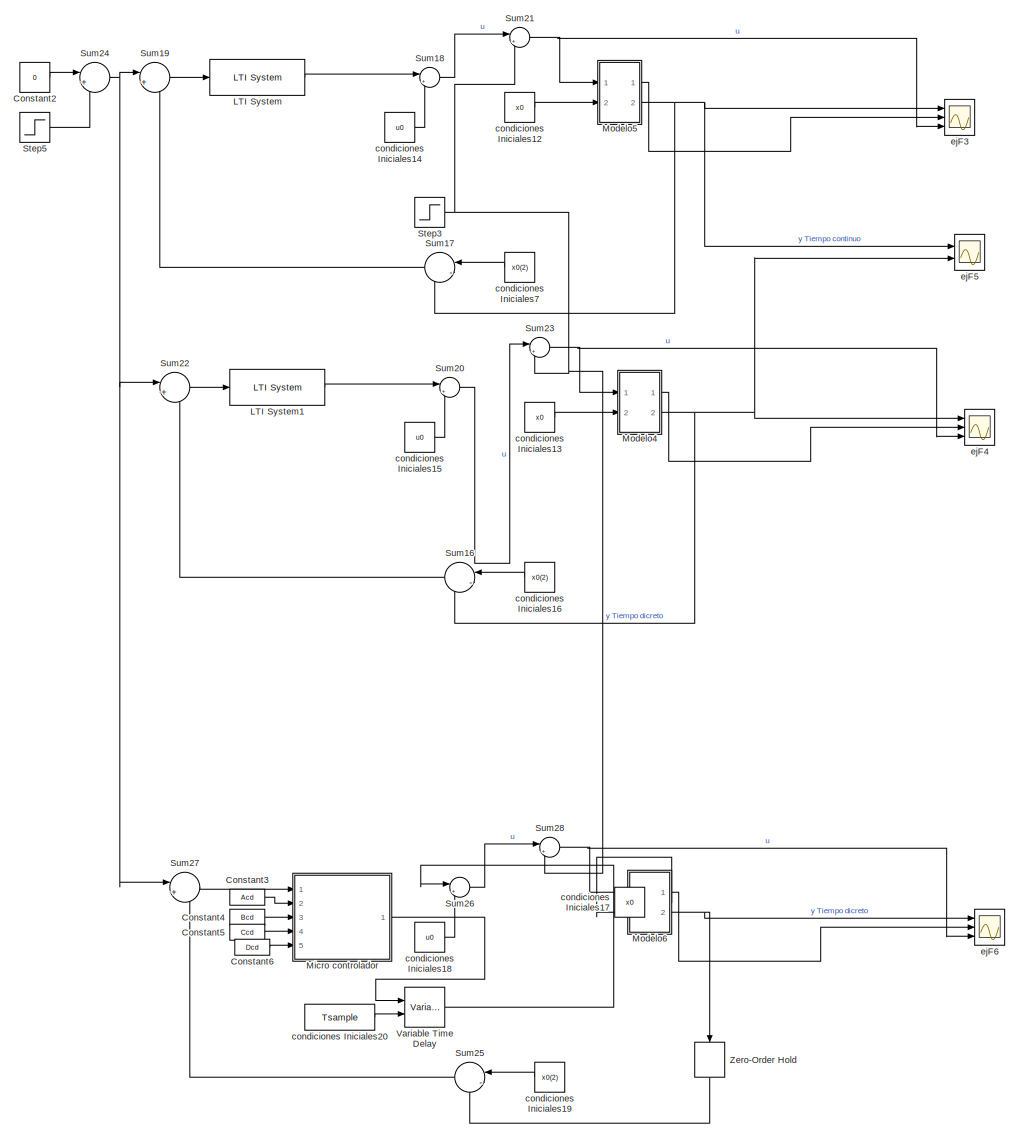
[diagram: root canvas - part 1/3, right side, full height]
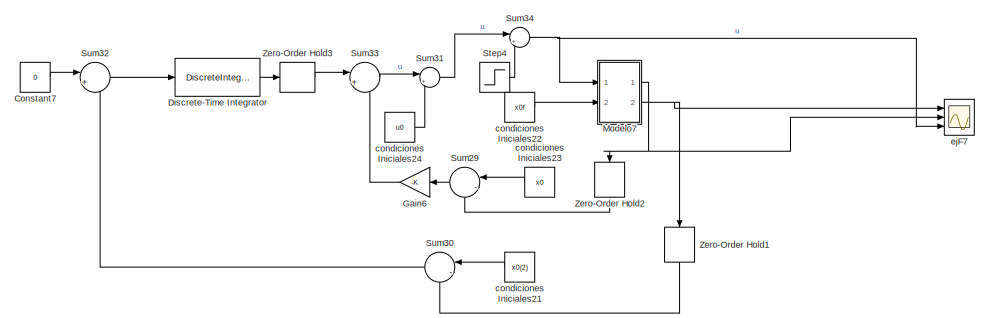
[diagram: root canvas - part 2/3, top left region]
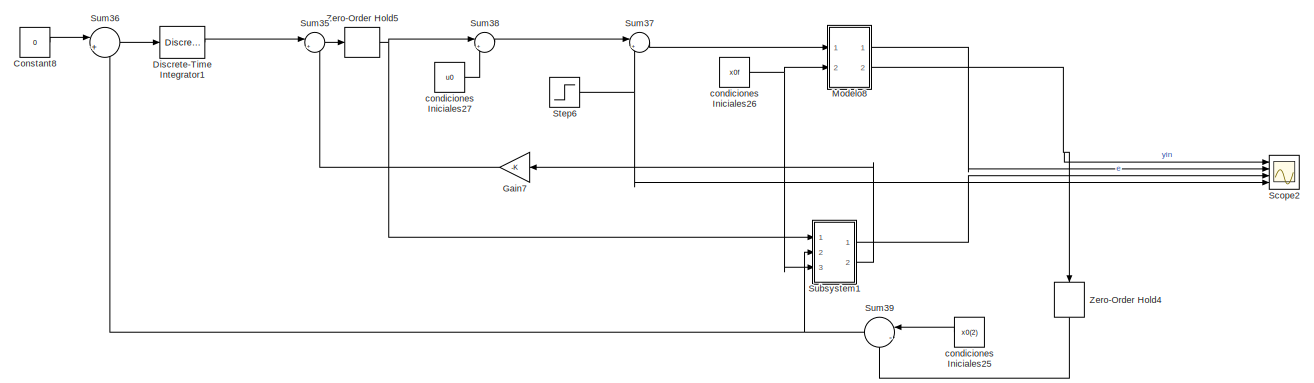
[diagram: root canvas - part 3/3, middle left region]
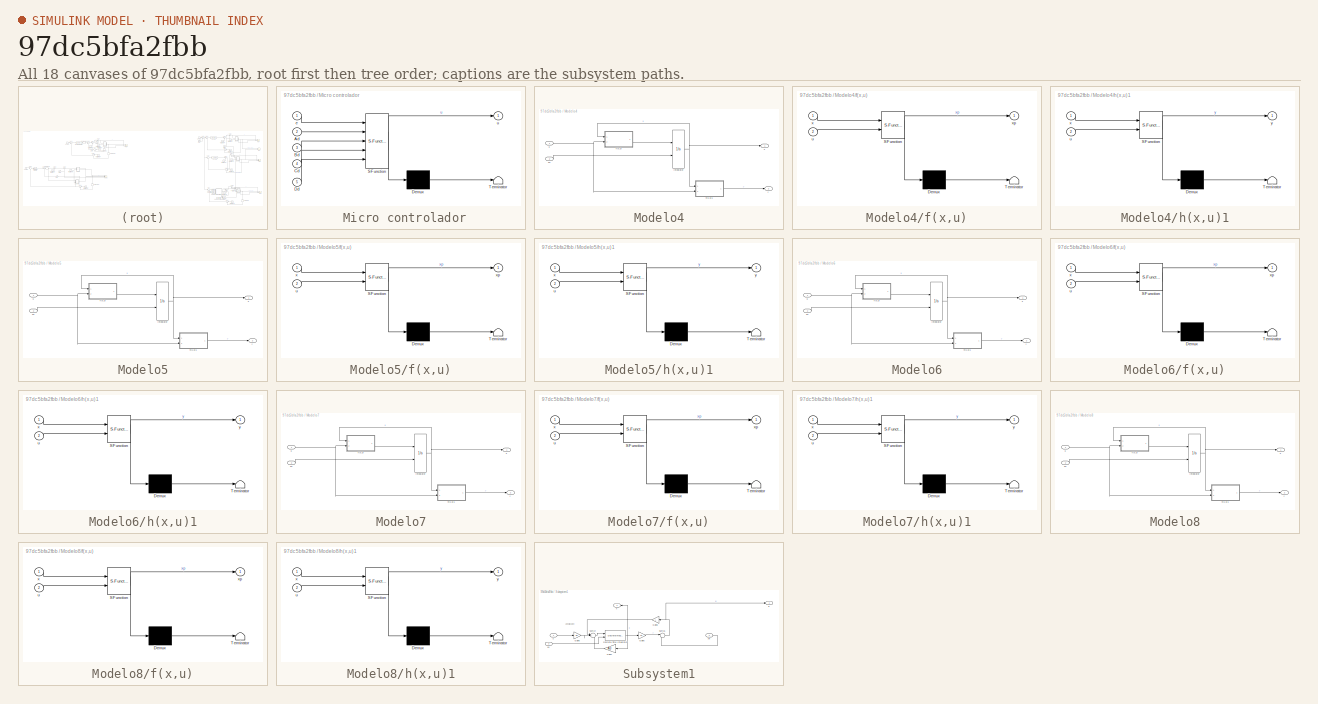
[diagram: thumbnail index - all 18 canvases of the model, root first then tree order]
MODEL slx_97dc5bfa2fbb
KIND model
CONFIG AbsTol = auto
CONFIG EnableMultiTasking = off
CONFIG FixedStep = 10e-6
CONFIG MaxStep = auto
CONFIG MinStep = auto
CONFIG RelTol = 1e-3
CONFIG SampleTimeConstraint = Unconstrained
CONFIG Solver = ode4
CONFIG SolverName = ode4
CONFIG StartTime = 0.0
CONFIG StopTime = 5
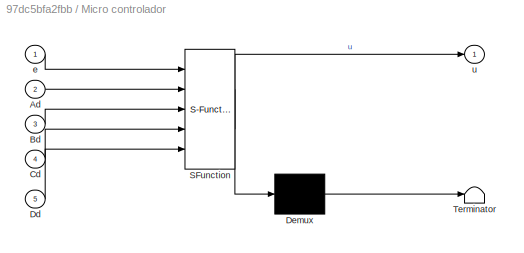
BLOCK [SubSystem]  Micro controlador
  Commented = on
  ErrorFcn = Stateflow.Translate.translate
  PermitHierarchicalResolution = ExplicitOnly
  Ports = [5, 1]
  RequestExecContextInheritance = off
  SFBlockType = MATLAB Function
  SystemSampleTime = Tsample
  TreatAsAtomicUnit = on
BLOCK [Demux]  Micro controlador/ Demux 
  DisplayOption = bar
  Outputs = 1
  Ports = [1, 1]
BLOCK [S-Function]  Micro controlador/ SFunction 
  EnableBusSupport = on
  FunctionName = sf_sfun
  PortCounts = [5 2]
  Ports = [5, 2]
  SFcnIsStateOwnerBlock = off
  SFunctionDeploymentMode = off
  Tag = Stateflow S-Function 13
BLOCK [Terminator]  Micro controlador/ Terminator 
BLOCK [Inport]  Micro controlador/Ad
  IconDisplay = Port number
  Port = 2
BLOCK [Inport]  Micro controlador/Bd
  IconDisplay = Port number
  Port = 3
BLOCK [Inport]  Micro controlador/Cd
  IconDisplay = Port number
  Port = 4
BLOCK [Inport]  Micro controlador/Dd
  IconDisplay = Port number
  Port = 5
BLOCK [Inport]  Micro controlador/e
  IconDisplay = Port number
BLOCK [Outport]  Micro controlador/u
  IconDisplay = Port number
BLOCK [Constant] Constant2
  Commented = on
  Value = 0
BLOCK [Constant] Constant3
  Commented = on
  Value = Acd
BLOCK [Constant] Constant4
  Commented = on
  Value = Bcd
BLOCK [Constant] Constant5
  Commented = on
  Value = Ccd
BLOCK [Constant] Constant6
  Commented = on
  Value = Dcd
BLOCK [Constant] Constant7
  Commented = on
  Value = 0
BLOCK [Constant] Constant8
  Value = 0
BLOCK [DiscreteIntegrator] Discrete-Time Integrator
  Commented = on
  ICPrevOutput = DiscIntNeverNeededParam
  ICPrevScaledInput = DiscIntNeverNeededParam
  InitialConditionSetting = Auto
  IntegratorMethod = Integration: Trapezoidal
  Ports = [1, 1]
  SampleTime = Tsample
  gainval = Ki
BLOCK [DiscreteIntegrator] Discrete-Time Integrator1
  ICPrevOutput = DiscIntNeverNeededParam
  ICPrevScaledInput = DiscIntNeverNeededParam
  InitialConditionSetting = Auto
  IntegratorMethod = Integration: Trapezoidal
  Ports = [1, 1]
  SampleTime = Tsample
  gainval = Ki
BLOCK [Gain] Gain6
  Commented = on
  Gain = -K
  Multiplication = Matrix(K*u)
  OutDataTypeStr = Inherit: Inherit via internal rule
  ParamDataTypeStr = Inherit: Inherit via internal rule
  SaturateOnIntegerOverflow = off
BLOCK [Gain] Gain7
  Gain = -K
  Multiplication = Matrix(K*u)
  OutDataTypeStr = Inherit: Inherit via internal rule
  ParamDataTypeStr = Inherit: Inherit via internal rule
  SaturateOnIntegerOverflow = off
BLOCK [Reference] LTI System  REF=cstblocks/LTI System
  Commented = on
  Ports = [1, 1]
  SourceBlock = cstblocks/LTI System
  SourceProductBaseCode = CT
  SourceType = LTI Block
BLOCK [Reference] LTI System1  REF=cstblocks/LTI System
  Commented = on
  Ports = [1, 1]
  SourceBlock = cstblocks/LTI System
  SourceProductBaseCode = CT
  SourceType = LTI Block
BLOCK [SubSystem] Modelo4
  Commented = on
  Ports = [2, 2]
  RequestExecContextInheritance = off
BLOCK [Integrator] Modelo4/Integrator
  InitialConditionSource = external
  Ports = [2, 1]
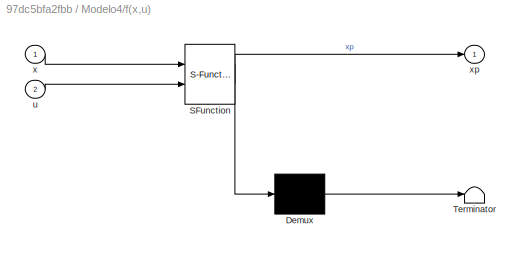
BLOCK [SubSystem] Modelo4/f(x,u)
  ErrorFcn = Stateflow.Translate.translate
  PermitHierarchicalResolution = ExplicitOnly
  Ports = [2, 1]
  RequestExecContextInheritance = off
  SFBlockType = MATLAB Function
  TreatAsAtomicUnit = on
BLOCK [Demux] Modelo4/f(x,u)/ Demux 
  DisplayOption = bar
  Outputs = 1
  Ports = [1, 1]
BLOCK [S-Function] Modelo4/f(x,u)/ SFunction 
  EnableBusSupport = on
  FunctionName = sf_sfun
  PortCounts = [2 2]
  Ports = [2, 2]
  SFcnIsStateOwnerBlock = off
  SFunctionDeploymentMode = off
  Tag = Stateflow S-Function 9
BLOCK [Terminator] Modelo4/f(x,u)/ Terminator 
BLOCK [Inport] Modelo4/f(x,u)/u
  IconDisplay = Port number
  Port = 2
BLOCK [Inport] Modelo4/f(x,u)/x
  IconDisplay = Port number
BLOCK [Outport] Modelo4/f(x,u)/xp
  IconDisplay = Port number
  VectorParamsAs1DForOutWhenUnconnected = off
BLOCK [SubSystem] Modelo4/h(x,u)1
  ErrorFcn = Stateflow.Translate.translate
  PermitHierarchicalResolution = ExplicitOnly
  Ports = [2, 1]
  RequestExecContextInheritance = off
  SFBlockType = MATLAB Function
  TreatAsAtomicUnit = on
BLOCK [Demux] Modelo4/h(x,u)1/ Demux 
  DisplayOption = bar
  Outputs = 1
  Ports = [1, 1]
BLOCK [S-Function] Modelo4/h(x,u)1/ SFunction 
  EnableBusSupport = on
  FunctionName = sf_sfun
  PortCounts = [2 2]
  Ports = [2, 2]
  SFcnIsStateOwnerBlock = off
  SFunctionDeploymentMode = off
  Tag = Stateflow S-Function 10
BLOCK [Terminator] Modelo4/h(x,u)1/ Terminator 
BLOCK [Inport] Modelo4/h(x,u)1/u
  IconDisplay = Port number
  Port = 2
BLOCK [Inport] Modelo4/h(x,u)1/x
  IconDisplay = Port number
BLOCK [Outport] Modelo4/h(x,u)1/y
  IconDisplay = Port number
  VectorParamsAs1DForOutWhenUnconnected = off
BLOCK [Inport] Modelo4/u
  IconDisplay = Port number
BLOCK [Outport] Modelo4/x
  IconDisplay = Port number
BLOCK [Inport] Modelo4/x0
  IconDisplay = Port number
  Port = 2
BLOCK [Outport] Modelo4/y
  IconDisplay = Port number
  Port = 2
BLOCK [SubSystem] Modelo5
  Commented = on
  Ports = [2, 2]
  RequestExecContextInheritance = off
BLOCK [Integrator] Modelo5/Integrator
  InitialConditionSource = external
  Ports = [2, 1]
BLOCK [SubSystem] Modelo5/f(x,u)
  ErrorFcn = Stateflow.Translate.translate
  PermitHierarchicalResolution = ExplicitOnly
  Ports = [2, 1]
  RequestExecContextInheritance = off
  SFBlockType = MATLAB Function
  TreatAsAtomicUnit = on
BLOCK [Demux] Modelo5/f(x,u)/ Demux 
  DisplayOption = bar
  Outputs = 1
  Ports = [1, 1]
BLOCK [S-Function] Modelo5/f(x,u)/ SFunction 
  EnableBusSupport = on
  FunctionName = sf_sfun
  PortCounts = [2 2]
  Ports = [2, 2]
  SFcnIsStateOwnerBlock = off
  SFunctionDeploymentMode = off
  Tag = Stateflow S-Function 11
BLOCK [Terminator] Modelo5/f(x,u)/ Terminator 
BLOCK [Inport] Modelo5/f(x,u)/u
  IconDisplay = Port number
  Port = 2
BLOCK [Inport] Modelo5/f(x,u)/x
  IconDisplay = Port number
BLOCK [Outport] Modelo5/f(x,u)/xp
  IconDisplay = Port number
  VectorParamsAs1DForOutWhenUnconnected = off
BLOCK [SubSystem] Modelo5/h(x,u)1
  ErrorFcn = Stateflow.Translate.translate
  PermitHierarchicalResolution = ExplicitOnly
  Ports = [2, 1]
  RequestExecContextInheritance = off
  SFBlockType = MATLAB Function
  TreatAsAtomicUnit = on
BLOCK [Demux] Modelo5/h(x,u)1/ Demux 
  DisplayOption = bar
  Outputs = 1
  Ports = [1, 1]
BLOCK [S-Function] Modelo5/h(x,u)1/ SFunction 
  EnableBusSupport = on
  FunctionName = sf_sfun
  PortCounts = [2 2]
  Ports = [2, 2]
  SFcnIsStateOwnerBlock = off
  SFunctionDeploymentMode = off
  Tag = Stateflow S-Function 12
BLOCK [Terminator] Modelo5/h(x,u)1/ Terminator 
BLOCK [Inport] Modelo5/h(x,u)1/u
  IconDisplay = Port number
  Port = 2
BLOCK [Inport] Modelo5/h(x,u)1/x
  IconDisplay = Port number
BLOCK [Outport] Modelo5/h(x,u)1/y
  IconDisplay = Port number
  VectorParamsAs1DForOutWhenUnconnected = off
BLOCK [Inport] Modelo5/u
  IconDisplay = Port number
BLOCK [Outport] Modelo5/x
  IconDisplay = Port number
BLOCK [Inport] Modelo5/x0
  IconDisplay = Port number
  Port = 2
BLOCK [Outport] Modelo5/y
  IconDisplay = Port number
  Port = 2
BLOCK [SubSystem] Modelo6
  Commented = on
  Ports = [2, 2]
  RequestExecContextInheritance = off
BLOCK [Integrator] Modelo6/Integrator
  InitialConditionSource = external
  Ports = [2, 1]
BLOCK [SubSystem] Modelo6/f(x,u)
  ErrorFcn = Stateflow.Translate.translate
  PermitHierarchicalResolution = ExplicitOnly
  Ports = [2, 1]
  RequestExecContextInheritance = off
  SFBlockType = MATLAB Function
  TreatAsAtomicUnit = on
BLOCK [Demux] Modelo6/f(x,u)/ Demux 
  DisplayOption = bar
  Outputs = 1
  Ports = [1, 1]
BLOCK [S-Function] Modelo6/f(x,u)/ SFunction 
  EnableBusSupport = on
  FunctionName = sf_sfun
  PortCounts = [2 2]
  Ports = [2, 2]
  SFcnIsStateOwnerBlock = off
  SFunctionDeploymentMode = off
  Tag = Stateflow S-Function 14
BLOCK [Terminator] Modelo6/f(x,u)/ Terminator 
BLOCK [Inport] Modelo6/f(x,u)/u
  IconDisplay = Port number
  Port = 2
BLOCK [Inport] Modelo6/f(x,u)/x
  IconDisplay = Port number
BLOCK [Outport] Modelo6/f(x,u)/xp
  IconDisplay = Port number
  VectorParamsAs1DForOutWhenUnconnected = off
BLOCK [SubSystem] Modelo6/h(x,u)1
  ErrorFcn = Stateflow.Translate.translate
  PermitHierarchicalResolution = ExplicitOnly
  Ports = [2, 1]
  RequestExecContextInheritance = off
  SFBlockType = MATLAB Function
  TreatAsAtomicUnit = on
BLOCK [Demux] Modelo6/h(x,u)1/ Demux 
  DisplayOption = bar
  Outputs = 1
  Ports = [1, 1]
BLOCK [S-Function] Modelo6/h(x,u)1/ SFunction 
  EnableBusSupport = on
  FunctionName = sf_sfun
  PortCounts = [2 2]
  Ports = [2, 2]
  SFcnIsStateOwnerBlock = off
  SFunctionDeploymentMode = off
  Tag = Stateflow S-Function 15
BLOCK [Terminator] Modelo6/h(x,u)1/ Terminator 
BLOCK [Inport] Modelo6/h(x,u)1/u
  IconDisplay = Port number
  Port = 2
BLOCK [Inport] Modelo6/h(x,u)1/x
  IconDisplay = Port number
BLOCK [Outport] Modelo6/h(x,u)1/y
  IconDisplay = Port number
  VectorParamsAs1DForOutWhenUnconnected = off
BLOCK [Inport] Modelo6/u
  IconDisplay = Port number
BLOCK [Outport] Modelo6/x
  IconDisplay = Port number
BLOCK [Inport] Modelo6/x0
  IconDisplay = Port number
  Port = 2
BLOCK [Outport] Modelo6/y
  IconDisplay = Port number
  Port = 2
BLOCK [SubSystem] Modelo7
  Commented = on
  Ports = [2, 2]
  RequestExecContextInheritance = off
BLOCK [Integrator] Modelo7/Integrator
  InitialConditionSource = external
  Ports = [2, 1]
BLOCK [SubSystem] Modelo7/f(x,u)
  ErrorFcn = Stateflow.Translate.translate
  PermitHierarchicalResolution = ExplicitOnly
  Ports = [2, 1]
  RequestExecContextInheritance = off
  SFBlockType = MATLAB Function
  TreatAsAtomicUnit = on
BLOCK [Demux] Modelo7/f(x,u)/ Demux 
  DisplayOption = bar
  Outputs = 1
  Ports = [1, 1]
BLOCK [S-Function] Modelo7/f(x,u)/ SFunction 
  EnableBusSupport = on
  FunctionName = sf_sfun
  PortCounts = [2 2]
  Ports = [2, 2]
  SFcnIsStateOwnerBlock = off
  SFunctionDeploymentMode = off
  Tag = Stateflow S-Function 16
BLOCK [Terminator] Modelo7/f(x,u)/ Terminator 
BLOCK [Inport] Modelo7/f(x,u)/u
  IconDisplay = Port number
  Port = 2
BLOCK [Inport] Modelo7/f(x,u)/x
  IconDisplay = Port number
BLOCK [Outport] Modelo7/f(x,u)/xp
  IconDisplay = Port number
  VectorParamsAs1DForOutWhenUnconnected = off
BLOCK [SubSystem] Modelo7/h(x,u)1
  ErrorFcn = Stateflow.Translate.translate
  PermitHierarchicalResolution = ExplicitOnly
  Ports = [2, 1]
  RequestExecContextInheritance = off
  SFBlockType = MATLAB Function
  TreatAsAtomicUnit = on
BLOCK [Demux] Modelo7/h(x,u)1/ Demux 
  DisplayOption = bar
  Outputs = 1
  Ports = [1, 1]
BLOCK [S-Function] Modelo7/h(x,u)1/ SFunction 
  EnableBusSupport = on
  FunctionName = sf_sfun
  PortCounts = [2 2]
  Ports = [2, 2]
  SFcnIsStateOwnerBlock = off
  SFunctionDeploymentMode = off
  Tag = Stateflow S-Function 17
BLOCK [Terminator] Modelo7/h(x,u)1/ Terminator 
BLOCK [Inport] Modelo7/h(x,u)1/u
  IconDisplay = Port number
  Port = 2
BLOCK [Inport] Modelo7/h(x,u)1/x
  IconDisplay = Port number
BLOCK [Outport] Modelo7/h(x,u)1/y
  IconDisplay = Port number
  VectorParamsAs1DForOutWhenUnconnected = off
BLOCK [Inport] Modelo7/u
  IconDisplay = Port number
BLOCK [Outport] Modelo7/x
  IconDisplay = Port number
BLOCK [Inport] Modelo7/x0
  IconDisplay = Port number
  Port = 2
BLOCK [Outport] Modelo7/y
  IconDisplay = Port number
  Port = 2
BLOCK [SubSystem] Modelo8
  Ports = [2, 2]
  RequestExecContextInheritance = off
BLOCK [Integrator] Modelo8/Integrator
  InitialConditionSource = external
  Ports = [2, 1]
BLOCK [SubSystem] Modelo8/f(x,u)
  ErrorFcn = Stateflow.Translate.translate
  PermitHierarchicalResolution = ExplicitOnly
  Ports = [2, 1]
  RequestExecContextInheritance = off
  SFBlockType = MATLAB Function
  TreatAsAtomicUnit = on
BLOCK [Demux] Modelo8/f(x,u)/ Demux 
  DisplayOption = bar
  Outputs = 1
  Ports = [1, 1]
BLOCK [S-Function] Modelo8/f(x,u)/ SFunction 
  EnableBusSupport = on
  FunctionName = sf_sfun
  PortCounts = [2 2]
  Ports = [2, 2]
  SFcnIsStateOwnerBlock = off
  SFunctionDeploymentMode = off
  Tag = Stateflow S-Function 18
BLOCK [Terminator] Modelo8/f(x,u)/ Terminator 
BLOCK [Inport] Modelo8/f(x,u)/u
  IconDisplay = Port number
  Port = 2
BLOCK [Inport] Modelo8/f(x,u)/x
  IconDisplay = Port number
BLOCK [Outport] Modelo8/f(x,u)/xp
  IconDisplay = Port number
  VectorParamsAs1DForOutWhenUnconnected = off
BLOCK [SubSystem] Modelo8/h(x,u)1
  ErrorFcn = Stateflow.Translate.translate
  PermitHierarchicalResolution = ExplicitOnly
  Ports = [2, 1]
  RequestExecContextInheritance = off
  SFBlockType = MATLAB Function
  TreatAsAtomicUnit = on
BLOCK [Demux] Modelo8/h(x,u)1/ Demux 
  DisplayOption = bar
  Outputs = 1
  Ports = [1, 1]
BLOCK [S-Function] Modelo8/h(x,u)1/ SFunction 
  EnableBusSupport = on
  FunctionName = sf_sfun
  PortCounts = [2 2]
  Ports = [2, 2]
  SFcnIsStateOwnerBlock = off
  SFunctionDeploymentMode = off
  Tag = Stateflow S-Function 19
BLOCK [Terminator] Modelo8/h(x,u)1/ Terminator 
BLOCK [Inport] Modelo8/h(x,u)1/u
  IconDisplay = Port number
  Port = 2
BLOCK [Inport] Modelo8/h(x,u)1/x
  IconDisplay = Port number
BLOCK [Outport] Modelo8/h(x,u)1/y
  IconDisplay = Port number
  VectorParamsAs1DForOutWhenUnconnected = off
BLOCK [Inport] Modelo8/u
  IconDisplay = Port number
BLOCK [Outport] Modelo8/x
  IconDisplay = Port number
BLOCK [Inport] Modelo8/x0
  IconDisplay = Port number
  Port = 2
BLOCK [Outport] Modelo8/y
  IconDisplay = Port number
  Port = 2
BLOCK [Scope] Scope2
  Floating = off
  NumInputPorts = 4
  Ports = [4]
  ScopeSpecificationString = Simulink.scopes.TimeScopeBlockCfg('CurrentConfiguration', extmgr.ConfigurationSet(extmgr.Configuration('Core','General UI',true,'FigureColor',[1 1 1]),extmgr.Configuration('Core','Source UI',true),extmgr.Configuration('Sources','WiredSimulink',true,'DataLoggingVariableName','ScopeData2'),extmgr.Configuration('Visuals','Time Domain',true,'SerializedDisplays',{struct('MinYLimReal','-0.48436','MaxYLi...<+4297ch>
BLOCK [Step] Step3
  After = 100e-3
  Commented = on
  SampleTime = 0
  Time = 2.5
BLOCK [Step] Step4
  After = 10
  Commented = on
  SampleTime = 0
  Time = 2.5
BLOCK [Step] Step5
  After = 1e-3
  Commented = on
  SampleTime = 0
BLOCK [Step] Step6
  After = 1e-3
  SampleTime = 0
  Time = 2.5
BLOCK [SubSystem] Subsystem1
  Ports = [3, 2]
  RequestExecContextInheritance = off
BLOCK [DiscreteIntegrator] Subsystem1/Discrete-Time Integrator
  ICPrevOutput = DiscIntNeverNeededParam
  ICPrevScaledInput = DiscIntNeverNeededParam
  InitialConditionSetting = Auto
  InitialConditionSource = external
  IntegratorMethod = Integration: Trapezoidal
  Ports = [2, 1]
  SampleTime = Tsample
BLOCK [Gain] Subsystem1/Gain5
  Gain = B0
  Multiplication = Matrix(K*u)
  OutDataTypeStr = Inherit: Inherit via internal rule
  ParamDataTypeStr = Inherit: Inherit via internal rule
  SaturateOnIntegerOverflow = off
BLOCK [Gain] Subsystem1/Gain6
  Gain = C0
  Multiplication = Matrix(K*u)
  OutDataTypeStr = Inherit: Inherit via internal rule
  ParamDataTypeStr = Inherit: Inherit via internal rule
  SaturateOnIntegerOverflow = off
BLOCK [Gain] Subsystem1/Gain7
  Gain = A0
  Multiplication = Matrix(K*u)
  OutDataTypeStr = Inherit: Inherit via internal rule
  ParamDataTypeStr = Inherit: Inherit via internal rule
  SaturateOnIntegerOverflow = off
BLOCK [Gain] Subsystem1/Gain8
  Gain = L
  Multiplication = Matrix(K*u)
  OutDataTypeStr = Inherit: Inherit via internal rule
  ParamDataTypeStr = Inherit: Inherit via internal rule
  SaturateOnIntegerOverflow = off
BLOCK [Sum] Subsystem1/Sum14
  IconShape = round
  InputSameDT = off
  Inputs = |+++
  OutDataTypeStr = Inherit: Inherit via internal rule
  Ports = [3, 1]
  SaturateOnIntegerOverflow = off
BLOCK [Sum] Subsystem1/Sum15
  IconShape = round
  InputSameDT = off
  Inputs = |-+
  OutDataTypeStr = Inherit: Inherit via internal rule
  Ports = [2, 1]
  SaturateOnIntegerOverflow = off
BLOCK [Outport] Subsystem1/e
  IconDisplay = Port number
BLOCK [Inport] Subsystem1/u
  IconDisplay = Port number
BLOCK [Outport] Subsystem1/x
  IconDisplay = Port number
  Port = 2
BLOCK [Inport] Subsystem1/x0
  IconDisplay = Port number
  Port = 3
BLOCK [Inport] Subsystem1/yin
  IconDisplay = Port number
  Port = 2
BLOCK [Sum] Sum16
  Commented = on
  IconShape = round
  InputSameDT = off
  Inputs = |-+
  OutDataTypeStr = double
  Ports = [2, 1]
  SaturateOnIntegerOverflow = off
BLOCK [Sum] Sum17
  Commented = on
  IconShape = round
  InputSameDT = off
  Inputs = |-+
  OutDataTypeStr = double
  Ports = [2, 1]
  SaturateOnIntegerOverflow = off
BLOCK [Sum] Sum18
  Commented = on
  IconShape = round
  InputSameDT = off
  Inputs = |++
  OutDataTypeStr = Inherit: Inherit via internal rule
  Ports = [2, 1]
  SaturateOnIntegerOverflow = off
BLOCK [Sum] Sum19
  Commented = on
  IconShape = round
  InputSameDT = off
  Inputs = |+-
  OutDataTypeStr = double
  Ports = [2, 1]
  SaturateOnIntegerOverflow = off
BLOCK [Sum] Sum20
  Commented = on
  IconShape = round
  InputSameDT = off
  Inputs = |++
  OutDataTypeStr = Inherit: Inherit via internal rule
  Ports = [2, 1]
  SaturateOnIntegerOverflow = off
BLOCK [Sum] Sum21
  Commented = on
  IconShape = round
  InputSameDT = off
  Inputs = |++
  OutDataTypeStr = Inherit: Inherit via internal rule
  Ports = [2, 1]
  SaturateOnIntegerOverflow = off
BLOCK [Sum] Sum22
  Commented = on
  IconShape = round
  InputSameDT = off
  Inputs = |+-
  OutDataTypeStr = double
  Ports = [2, 1]
  SaturateOnIntegerOverflow = off
BLOCK [Sum] Sum23
  Commented = on
  IconShape = round
  InputSameDT = off
  Inputs = |++
  OutDataTypeStr = Inherit: Inherit via internal rule
  Ports = [2, 1]
  SaturateOnIntegerOverflow = off
BLOCK [Sum] Sum24
  Commented = on
  IconShape = round
  InputSameDT = off
  Inputs = |++
  OutDataTypeStr = double
  Ports = [2, 1]
  SaturateOnIntegerOverflow = off
BLOCK [Sum] Sum25
  Commented = on
  IconShape = round
  InputSameDT = off
  Inputs = |-+
  OutDataTypeStr = double
  Ports = [2, 1]
  SaturateOnIntegerOverflow = off
BLOCK [Sum] Sum26
  Commented = on
  IconShape = round
  InputSameDT = off
  Inputs = |++
  OutDataTypeStr = Inherit: Inherit via internal rule
  Ports = [2, 1]
  SaturateOnIntegerOverflow = off
BLOCK [Sum] Sum27
  Commented = on
  IconShape = round
  InputSameDT = off
  Inputs = |+-
  OutDataTypeStr = double
  Ports = [2, 1]
  SaturateOnIntegerOverflow = off
BLOCK [Sum] Sum28
  Commented = on
  IconShape = round
  InputSameDT = off
  Inputs = |++
  OutDataTypeStr = Inherit: Inherit via internal rule
  Ports = [2, 1]
  SaturateOnIntegerOverflow = off
BLOCK [Sum] Sum29
  Commented = on
  IconShape = round
  InputSameDT = off
  Inputs = |-+
  OutDataTypeStr = double
  Ports = [2, 1]
  SaturateOnIntegerOverflow = off
BLOCK [Sum] Sum30
  Commented = on
  IconShape = round
  InputSameDT = off
  Inputs = |-+
  OutDataTypeStr = double
  Ports = [2, 1]
  SaturateOnIntegerOverflow = off
BLOCK [Sum] Sum31
  Commented = on
  IconShape = round
  InputSameDT = off
  Inputs = |++
  OutDataTypeStr = Inherit: Inherit via internal rule
  Ports = [2, 1]
  SaturateOnIntegerOverflow = off
BLOCK [Sum] Sum32
  Commented = on
  IconShape = round
  InputSameDT = off
  Inputs = |+-
  OutDataTypeStr = double
  Ports = [2, 1]
  SaturateOnIntegerOverflow = off
BLOCK [Sum] Sum33
  Commented = on
  IconShape = round
  InputSameDT = off
  Inputs = |++
  OutDataTypeStr = double
  Ports = [2, 1]
  SaturateOnIntegerOverflow = off
BLOCK [Sum] Sum34
  Commented = on
  IconShape = round
  InputSameDT = off
  Inputs = |++
  OutDataTypeStr = Inherit: Inherit via internal rule
  Ports = [2, 1]
  SaturateOnIntegerOverflow = off
BLOCK [Sum] Sum35
  IconShape = round
  InputSameDT = off
  Inputs = |++
  OutDataTypeStr = Inherit: Inherit via internal rule
  Ports = [2, 1]
  SaturateOnIntegerOverflow = off
BLOCK [Sum] Sum36
  IconShape = round
  InputSameDT = off
  Inputs = |+-
  OutDataTypeStr = double
  Ports = [2, 1]
  SaturateOnIntegerOverflow = off
BLOCK [Sum] Sum37
  IconShape = round
  InputSameDT = off
  Inputs = |++
  OutDataTypeStr = Inherit: Inherit via internal rule
  Ports = [2, 1]
  SaturateOnIntegerOverflow = off
BLOCK [Sum] Sum38
  IconShape = round
  InputSameDT = off
  Inputs = |++
  OutDataTypeStr = Inherit: Inherit via internal rule
  Ports = [2, 1]
  SaturateOnIntegerOverflow = off
BLOCK [Sum] Sum39
  IconShape = round
  InputSameDT = off
  Inputs = |-+
  OutDataTypeStr = double
  Ports = [2, 1]
  SaturateOnIntegerOverflow = off
BLOCK [VariableTransportDelay] Variable Time Delay
  Commented = on
  MaximumDelay = 10
  Ports = [2, 1]
BLOCK [ZeroOrderHold] Zero-Order Hold
  Commented = on
  SampleTime = Tsample
BLOCK [ZeroOrderHold] Zero-Order Hold1
  Commented = on
  SampleTime = -1
BLOCK [ZeroOrderHold] Zero-Order Hold2
  Commented = on
  SampleTime = -1
BLOCK [ZeroOrderHold] Zero-Order Hold3
  Commented = on
  SampleTime = -1
BLOCK [ZeroOrderHold] Zero-Order Hold4
  SampleTime = -1
BLOCK [ZeroOrderHold] Zero-Order Hold5
  SampleTime = -1
BLOCK [Constant] condiciones Iniciales12
  Commented = on
  Value = x0
BLOCK [Constant] condiciones Iniciales13
  Commented = on
  Value = x0
BLOCK [Constant] condiciones Iniciales14
  Commented = on
  Value = u0
BLOCK [Constant] condiciones Iniciales15
  Commented = on
  Value = u0
BLOCK [Constant] condiciones Iniciales16
  Commented = on
  Value = x0(2)
BLOCK [Constant] condiciones Iniciales17
  Commented = on
  Value = x0
BLOCK [Constant] condiciones Iniciales18
  Commented = on
  Value = u0
BLOCK [Constant] condiciones Iniciales19
  Commented = on
  Value = x0(2)
BLOCK [Constant] condiciones Iniciales20
  Commented = on
  Value = Tsample
BLOCK [Constant] condiciones Iniciales21
  Commented = on
  Value = x0(2)
BLOCK [Constant] condiciones Iniciales22
  Commented = on
  Value = x0f
BLOCK [Constant] condiciones Iniciales23
  Commented = on
  Value = x0
BLOCK [Constant] condiciones Iniciales24
  Commented = on
  Value = u0
BLOCK [Constant] condiciones Iniciales25
  Value = x0(2)
BLOCK [Constant] condiciones Iniciales26
  Value = x0f
BLOCK [Constant] condiciones Iniciales27
  Value = u0
BLOCK [Constant] condiciones Iniciales7
  Commented = on
  Value = x0(2)
BLOCK [Scope] ejF3
  Commented = on
  Floating = off
  NumInputPorts = 3
  Ports = [3]
  ScopeSpecificationString = Simulink.scopes.TimeScopeBlockCfg('CurrentConfiguration', extmgr.ConfigurationSet(extmgr.Configuration('Core','General UI',true,'FigureColor',[1 1 1]),extmgr.Configuration('Core','Source UI',true),extmgr.Configuration('Sources','WiredSimulink',true,'DataLoggingVariableName','ScopeData1'),extmgr.Configuration('Visuals','Time Domain',true,'SerializedDisplays',{struct('MinYLimReal','-0.00017','MaxYLi...<+3459ch>
BLOCK [Scope] ejF4
  Commented = on
  Floating = off
  NumInputPorts = 3
  Ports = [3]
  ScopeSpecificationString = Simulink.scopes.TimeScopeBlockCfg('CurrentConfiguration', extmgr.ConfigurationSet(extmgr.Configuration('Core','General UI',true,'FigureColor',[1 1 1]),extmgr.Configuration('Core','Source UI',true),extmgr.Configuration('Sources','WiredSimulink',true,'DataLoggingVariableName','ScopeData2'),extmgr.Configuration('Visuals','Time Domain',true,'SerializedDisplays',{struct('MinYLimReal','-0.00017','MaxYLi...<+3459ch>
BLOCK [Scope] ejF5
  Commented = on
  Floating = off
  NumInputPorts = 2
  Ports = [2]
  ScopeSpecificationString = Simulink.scopes.TimeScopeBlockCfg('CurrentConfiguration', extmgr.ConfigurationSet(extmgr.Configuration('Core','General UI',true,'FigureColor',[1 1 1]),extmgr.Configuration('Core','Source UI',true),extmgr.Configuration('Sources','WiredSimulink',true,'DataLoggingVariableName','ScopeData3'),extmgr.Configuration('Visuals','Time Domain',true,'SerializedDisplays',{struct('MinYLimReal','-0.00017','MaxYLi...<+1852ch>
BLOCK [Scope] ejF6
  Commented = on
  Floating = off
  NumInputPorts = 3
  Ports = [3]
  ScopeSpecificationString = Simulink.scopes.TimeScopeBlockCfg('CurrentConfiguration', extmgr.ConfigurationSet(extmgr.Configuration('Core','General UI',true,'FigureColor',[1 1 1]),extmgr.Configuration('Core','Source UI',true),extmgr.Configuration('Sources','WiredSimulink',true,'DataLoggingVariableName','ScopeData1'),extmgr.Configuration('Visuals','Time Domain',true,'SerializedDisplays',{struct('MinYLimReal','-0.00018','MaxYLi...<+3459ch>
BLOCK [Scope] ejF7
  Commented = on
  Floating = off
  NumInputPorts = 3
  Ports = [3]
  ScopeSpecificationString = Simulink.scopes.TimeScopeBlockCfg('CurrentConfiguration', extmgr.ConfigurationSet(extmgr.Configuration('Core','General UI',true,'FigureColor',[1 1 1]),extmgr.Configuration('Core','Source UI',true),extmgr.Configuration('Sources','WiredSimulink',true,'DataLoggingVariableName','ScopeData1'),extmgr.Configuration('Visuals','Time Domain',true,'SerializedDisplays',{struct('MinYLimReal','-0.18791','MaxYLi...<+3475ch>
ANNOTATION Subsystem1: Linealizacion
LINE  Micro controlador:1 -> Variable Time Delay:1
LINE Constant2:1 -> Sum24:1
LINE Constant3:1 ->  Micro controlador:2
LINE Constant4:1 ->  Micro controlador:3
LINE Constant5:1 ->  Micro controlador:4
LINE Constant6:1 ->  Micro controlador:5
LINE Constant7:1 -> Sum32:1
LINE Constant8:1 -> Sum36:1
LINE Discrete-Time Integrator1:1 -> Sum35:1
LINE Discrete-Time Integrator:1 -> Zero-Order Hold3:1
LINE Gain6:1 -> Sum33:2
LINE Gain7:1 -> Sum35:2
LINE LTI System1:1 -> Sum20:1
LINE LTI System:1 -> Sum18:1
NET Modelo4/Integrator:1 -> Modelo4/f(x,u):1, Modelo4/h(x,u)1:1, Modelo4/x:1
LINE Modelo4/f(x,u):1 -> Modelo4/Integrator:1
LINE Modelo4/h(x,u)1:1 -> Modelo4/y:1
NET Modelo4/u:1 -> Modelo4/f(x,u):2, Modelo4/h(x,u)1:2
LINE Modelo4/x0:1 -> Modelo4/Integrator:2
LINE Modelo4:1 -> ejF4:2
NET Modelo4:2 -> Sum16:2, ejF4:1, ejF5:2
NET Modelo5/Integrator:1 -> Modelo5/f(x,u):1, Modelo5/h(x,u)1:1, Modelo5/x:1
LINE Modelo5/f(x,u):1 -> Modelo5/Integrator:1
LINE Modelo5/h(x,u)1:1 -> Modelo5/y:1
NET Modelo5/u:1 -> Modelo5/f(x,u):2, Modelo5/h(x,u)1:2
LINE Modelo5/x0:1 -> Modelo5/Integrator:2
LINE Modelo5:1 -> ejF3:2
NET Modelo5:2 -> Sum17:2, ejF3:1, ejF5:1
NET Modelo6/Integrator:1 -> Modelo6/f(x,u):1, Modelo6/h(x,u)1:1, Modelo6/x:1
LINE Modelo6/f(x,u):1 -> Modelo6/Integrator:1
LINE Modelo6/h(x,u)1:1 -> Modelo6/y:1
NET Modelo6/u:1 -> Modelo6/f(x,u):2, Modelo6/h(x,u)1:2
LINE Modelo6/x0:1 -> Modelo6/Integrator:2
LINE Modelo6:1 -> ejF6:2
NET Modelo6:2 -> Zero-Order Hold:1, ejF6:1
NET Modelo7/Integrator:1 -> Modelo7/f(x,u):1, Modelo7/h(x,u)1:1, Modelo7/x:1
LINE Modelo7/f(x,u):1 -> Modelo7/Integrator:1
LINE Modelo7/h(x,u)1:1 -> Modelo7/y:1
NET Modelo7/u:1 -> Modelo7/f(x,u):2, Modelo7/h(x,u)1:2
LINE Modelo7/x0:1 -> Modelo7/Integrator:2
NET Modelo7:1 -> Zero-Order Hold2:1, ejF7:2
NET Modelo7:2 -> Zero-Order Hold1:1, ejF7:1
NET Modelo8/Integrator:1 -> Modelo8/f(x,u):1, Modelo8/h(x,u)1:1, Modelo8/x:1
LINE Modelo8/f(x,u):1 -> Modelo8/Integrator:1
LINE Modelo8/h(x,u)1:1 -> Modelo8/y:1
NET Modelo8/u:1 -> Modelo8/f(x,u):2, Modelo8/h(x,u)1:2
LINE Modelo8/x0:1 -> Modelo8/Integrator:2
LINE Modelo8:1 -> Scope2:2
NET Modelo8:2 -> Scope2:1, Zero-Order Hold4:1
NET Step3:1 -> Sum21:2, Sum23:2, Sum28:2
LINE Step4:1 -> Sum34:2
LINE Step5:1 -> Sum24:2
NET Step6:1 -> Scope2:4, Sum37:2
NET Subsystem1/Discrete-Time Integrator:1 -> Subsystem1/Gain6:1, Subsystem1/Gain7:1, Subsystem1/x:1
LINE Subsystem1/Gain5:1 -> Subsystem1/Sum14:2
LINE Subsystem1/Gain6:1 -> Subsystem1/Sum15:1
LINE Subsystem1/Gain7:1 -> Subsystem1/Sum14:3
LINE Subsystem1/Gain8:1 -> Subsystem1/Sum14:1
LINE Subsystem1/Sum14:1 -> Subsystem1/Discrete-Time Integrator:1
NET Subsystem1/Sum15:1 -> Subsystem1/Gain8:1, Subsystem1/e:1
LINE Subsystem1/u:1 -> Subsystem1/Gain5:1
LINE Subsystem1/x0:1 -> Subsystem1/Discrete-Time Integrator:2
LINE Subsystem1/yin:1 -> Subsystem1/Sum15:2
LINE Subsystem1:1 -> Scope2:3
LINE Subsystem1:2 -> Gain7:1
LINE Sum16:1 -> Sum22:2
LINE Sum17:1 -> Sum19:2
LINE Sum18:1 -> Sum21:1
LINE Sum19:1 -> LTI System:1
LINE Sum20:1 -> Sum23:1
NET Sum21:1 -> Modelo5:1, ejF3:3
LINE Sum22:1 -> LTI System1:1
NET Sum23:1 -> Modelo4:1, ejF4:3
NET Sum24:1 -> Sum19:1, Sum22:1, Sum27:1
LINE Sum25:1 -> Sum27:2
LINE Sum26:1 -> Sum28:1
LINE Sum27:1 ->  Micro controlador:1
NET Sum28:1 -> Modelo6:1, ejF6:3
LINE Sum29:1 -> Gain6:1
LINE Sum30:1 -> Sum32:2
LINE Sum31:1 -> Sum34:1
LINE Sum32:1 -> Discrete-Time Integrator:1
LINE Sum33:1 -> Sum31:1
NET Sum34:1 -> Modelo7:1, ejF7:3
LINE Sum35:1 -> Zero-Order Hold5:1
LINE Sum36:1 -> Discrete-Time Integrator1:1
LINE Sum37:1 -> Modelo8:1
LINE Sum38:1 -> Sum37:1
NET Sum39:1 -> Subsystem1:2, Sum36:2
LINE Variable Time Delay:1 -> Sum26:1
LINE Zero-Order Hold1:1 -> Sum30:2
LINE Zero-Order Hold2:1 -> Sum29:2
LINE Zero-Order Hold3:1 -> Sum33:1
LINE Zero-Order Hold4:1 -> Sum39:2
NET Zero-Order Hold5:1 -> Subsystem1:1, Sum38:1
LINE Zero-Order Hold:1 -> Sum25:2
LINE condiciones Iniciales12:1 -> Modelo5:2
LINE condiciones Iniciales13:1 -> Modelo4:2
LINE condiciones Iniciales14:1 -> Sum18:2
LINE condiciones Iniciales15:1 -> Sum20:2
LINE condiciones Iniciales16:1 -> Sum16:1
LINE condiciones Iniciales17:1 -> Modelo6:2
LINE condiciones Iniciales18:1 -> Sum26:2
LINE condiciones Iniciales19:1 -> Sum25:1
LINE condiciones Iniciales20:1 -> Variable Time Delay:2
LINE condiciones Iniciales21:1 -> Sum30:1
LINE condiciones Iniciales22:1 -> Modelo7:2
LINE condiciones Iniciales23:1 -> Sum29:1
LINE condiciones Iniciales24:1 -> Sum31:2
LINE condiciones Iniciales25:1 -> Sum39:1
NET condiciones Iniciales26:1 -> Modelo8:2, Subsystem1:3
LINE condiciones Iniciales27:1 -> Sum38:2
LINE condiciones Iniciales7:1 -> Sum17:1
note: NET lines group one-source signal fan-out (src -> all destinations, sorted); 1:1 wires keep LINE
CHART Modelo4/f(x,u) states=1 transitions=1
  STATE_LABEL 'eML_blk_kernel()'
  STATE_LABEL 'SCRIPT:\nfunction xp = f(x,u)\n\n\n\nR=4;%resistencia del inductor\n L=1;%inductancia del electro iman\n m=0.2;%masa de la bolita\n g=10;%aceleracion de la grabedad\n \n\nids=(-(x(1)^2)/(L/R))+(u/L);\n\nF1s=(0.5*((2+x(1))^2))/((1-x(2))^2);\nF2s=(0.5*((2-x(1))^2))/((1+x(2))^2);\nvds=-g+(F1s/m)-(F2s/m);\n\nxp=[ids;x(3);vds];\n'  <repeated x5 — deduplicated; at blocks: f(x,u)>
CHART Modelo4/h(x,u)1 states=1 transitions=1
  STATE_LABEL 'eML_blk_kernel()'
  STATE_LABEL 'SCRIPT:\nfunction y = h(x,u)\n\n\n\ny=x(2);\n'
CHART Modelo5/f(x,u) states=1 transitions=1
  STATE_LABEL 'eML_blk_kernel()'
CHART Modelo5/h(x,u)1 states=1 transitions=1
  STATE_LABEL 'eML_blk_kernel()'
  STATE_LABEL 'SCRIPT:\nfunction y = h(x,u)\n\n\n\ny=x(2);\n'
CHART  Micro controlador states=1 transitions=1
  STATE_LABEL 'eML_blk_kernel()'
  STATE_LABEL 'SCRIPT:\nfunction u = fcn(e,Ad,Bd,Cd,Dd)\n\npersistent xp;\n\nif isempty(xp)\n    xp =[0;0;0;0];\nend\nxp1=[0;0;0;0];\nxp1=Ad*xp+Bd*e;\nu=transpose(Cd)*xp+Dd*e;\n\nxp=xp1;\nend'
CHART Modelo6/f(x,u) states=1 transitions=1
  STATE_LABEL 'eML_blk_kernel()'
CHART Modelo6/h(x,u)1 states=1 transitions=1
  STATE_LABEL 'eML_blk_kernel()'
  STATE_LABEL 'SCRIPT:\nfunction y = h(x,u)\n\n\n\ny=x(2);\n'
CHART Modelo7/f(x,u) states=1 transitions=1
  STATE_LABEL 'eML_blk_kernel()'
CHART Modelo7/h(x,u)1 states=1 transitions=1
  STATE_LABEL 'eML_blk_kernel()'
  STATE_LABEL 'SCRIPT:\nfunction y = h(x,u)\n\n\n\ny=x(2);\n'
CHART Modelo8/f(x,u) states=1 transitions=1
  STATE_LABEL 'eML_blk_kernel()'
CHART Modelo8/h(x,u)1 states=1 transitions=1
  STATE_LABEL 'eML_blk_kernel()'
  STATE_LABEL 'SCRIPT:\nfunction y = h(x,u)\n\n\n\ny=x(2);\n'
